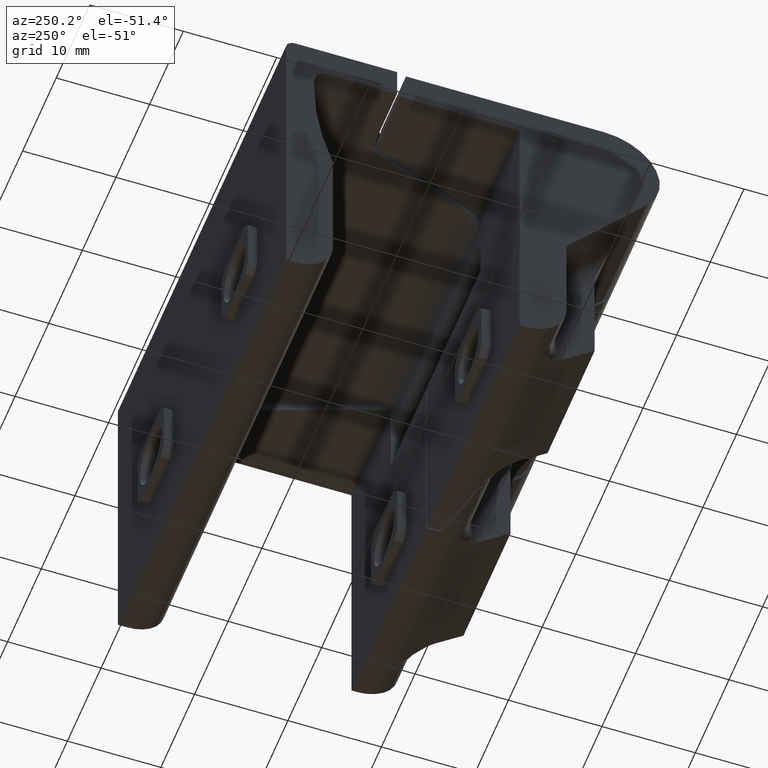
[diagram: clean part render]
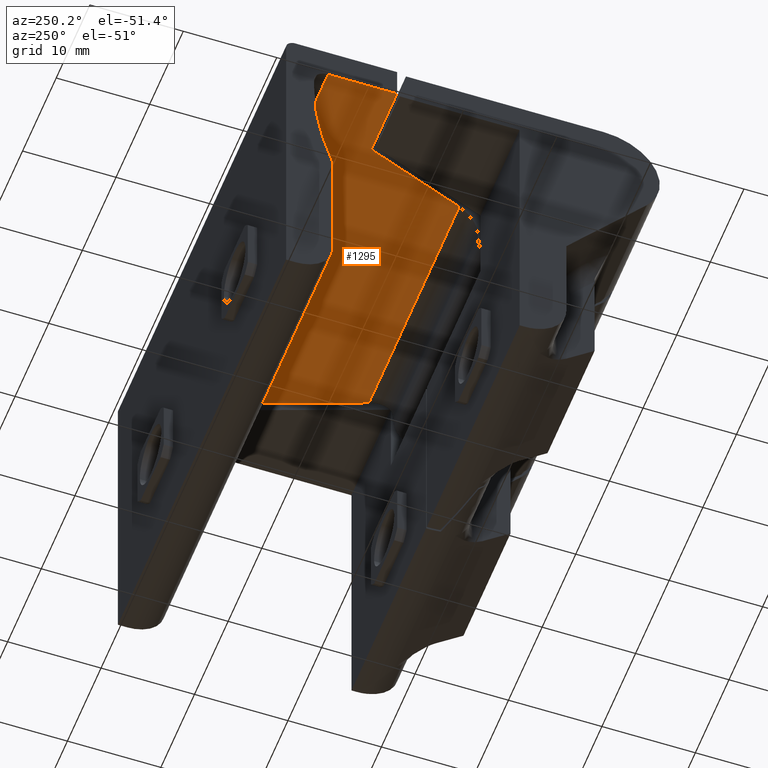
[diagram: same view with one face highlighted and labeled with its STEP entity id]
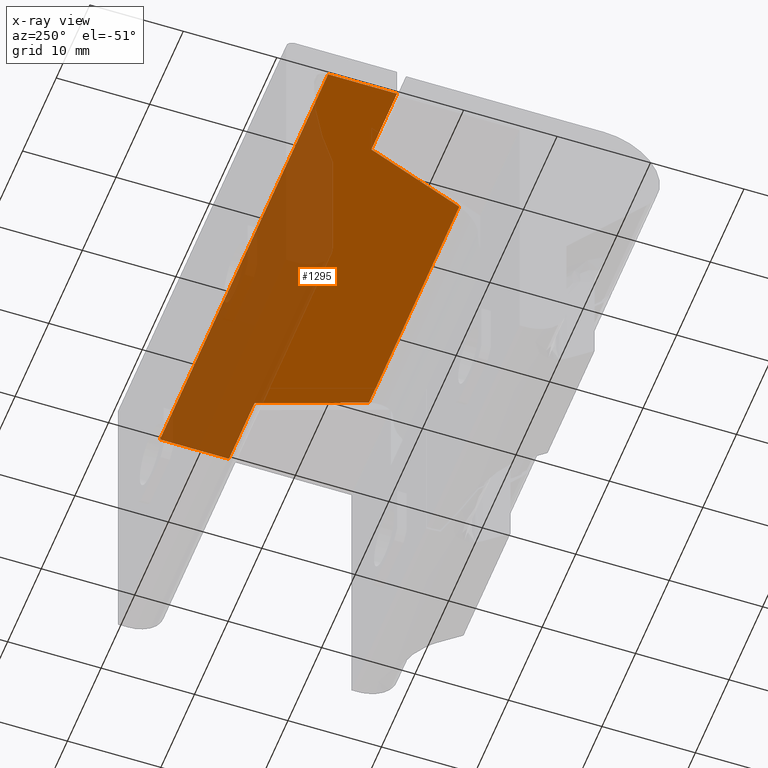
[diagram: x-ray of the same camera — body ghosted, the highlighted face saturated]
A machine part, auxiliary view. The second image highlights one B-rep face of the part: STEP entity #1295.
The next image is the same camera in x-ray: the body ghosted, the highlighted face saturated — about 44% of this face is hidden behind the body in this view.
In plain terms, the highlighted face is a freeform B-spline surface patch.
Its self-contained STEP definition (entity closure, byte-faithful):
#998=CARTESIAN_POINT('',(-17.367328519246200,-11.879647380749001,31.800000000037350));
#999=VERTEX_POINT('',#998);
#1005=CARTESIAN_POINT('',(-13.429042241574420,-22.699999999999999,31.800000000037350));
#1006=VERTEX_POINT('',#1005);
#1007=CARTESIAN_POINT('',(-13.429042241574420,-22.699999999999999,31.800000000037350));
#1008=CARTESIAN_POINT('',(-17.367328519246200,-11.879647380749001,31.800000000037350));
#1009=QUASI_UNIFORM_CURVE('',1,(#1007,#1008),.UNSPECIFIED.,.F.,.U.);
#1010=EDGE_CURVE('',#1006,#999,#1009,.T.);
#1210=CARTESIAN_POINT('',(13.429042241574660,-22.699999999999999,31.800000000037350));
#1211=VERTEX_POINT('',#1210);
#1226=CARTESIAN_POINT('',(17.367328519246200,-11.879647380749301,31.800000000037350));
#1227=VERTEX_POINT('',#1226);
#1228=CARTESIAN_POINT('',(13.429042241574660,-22.699999999999999,31.800000000037350));
#1229=CARTESIAN_POINT('',(17.367328519246200,-11.879647380749301,31.800000000037350));
#1230=QUASI_UNIFORM_CURVE('',1,(#1228,#1229),.UNSPECIFIED.,.F.,.U.);
#1231=EDGE_CURVE('',#1211,#1227,#1230,.T.);
#1248=CARTESIAN_POINT('',(-27.497499903090301,-23.609089964724870,31.800000000037350));
#1249=CARTESIAN_POINT('',(27.497501244194812,-23.609089964724870,31.800000000037350));
#1250=CARTESIAN_POINT('',(-27.497499903090301,-3.590909547113091,31.800000000037350));
#1251=CARTESIAN_POINT('',(27.497501244194812,-3.590909547113091,31.800000000037350));
#1252=B_SPLINE_SURFACE_WITH_KNOTS('',1,1,((#1248,#1250),(#1249,#1251)),.UNSPECIFIED.,.F.,.F.,.U.,(2,2),(2,2),(0.0,54.995001147285109),(0.0,20.018180417611781),.UNSPECIFIED.);
#1253=ORIENTED_EDGE('',*,*,#1010,.T.);
#1254=CARTESIAN_POINT('',(-25.0,-11.879647380749001,31.800000000037350));
#1255=VERTEX_POINT('',#1254);
#1256=CARTESIAN_POINT('',(-17.367328519246200,-11.879647380749001,31.800000000037350));
#1257=CARTESIAN_POINT('',(-25.0,-11.879647380749001,31.800000000037350));
#1258=QUASI_UNIFORM_CURVE('',1,(#1256,#1257),.UNSPECIFIED.,.F.,.U.);
#1259=EDGE_CURVE('',#999,#1255,#1258,.T.);
#1260=ORIENTED_EDGE('',*,*,#1259,.T.);
#1261=CARTESIAN_POINT('',(-25.0,-4.500000000000000,31.800000000037350));
#1262=VERTEX_POINT('',#1261);
#1263=CARTESIAN_POINT('',(-25.0,-11.879647380749001,31.800000000037350));
#1264=CARTESIAN_POINT('',(-25.0,-4.500000000000000,31.800000000037350));
#1265=QUASI_UNIFORM_CURVE('',1,(#1263,#1264),.UNSPECIFIED.,.F.,.U.);
#1266=EDGE_CURVE('',#1255,#1262,#1265,.T.);
#1267=ORIENTED_EDGE('',*,*,#1266,.T.);
#1268=CARTESIAN_POINT('',(25.0,-4.500000000000000,31.800000000037350));
#1269=VERTEX_POINT('',#1268);
#1270=CARTESIAN_POINT('',(25.0,-4.500000000000000,31.800000000037350));
#1271=CARTESIAN_POINT('',(-25.0,-4.500000000000000,31.800000000037350));
#1272=QUASI_UNIFORM_CURVE('',1,(#1270,#1271),.UNSPECIFIED.,.F.,.U.);
#1273=EDGE_CURVE('',#1269,#1262,#1272,.T.);
#1274=ORIENTED_EDGE('',*,*,#1273,.F.);
#1275=CARTESIAN_POINT('',(25.0,-11.879647380749001,31.800000000037350));
#1276=VERTEX_POINT('',#1275);
#1277=CARTESIAN_POINT('',(25.0,-11.879647380749001,31.800000000037350));
#1278=CARTESIAN_POINT('',(25.0,-4.500000000000000,31.800000000037350));
#1279=QUASI_UNIFORM_CURVE('',1,(#1277,#1278),.UNSPECIFIED.,.F.,.U.);
#1280=EDGE_CURVE('',#1276,#1269,#1279,.T.);
#1281=ORIENTED_EDGE('',*,*,#1280,.F.);
#1282=CARTESIAN_POINT('',(17.367328519246200,-11.879647380749301,31.800000000037350));
#1283=CARTESIAN_POINT('',(25.0,-11.879647380749001,31.800000000037350));
#1284=QUASI_UNIFORM_CURVE('',1,(#1282,#1283),.UNSPECIFIED.,.F.,.U.);
#1285=EDGE_CURVE('',#1227,#1276,#1284,.T.);
#1286=ORIENTED_EDGE('',*,*,#1285,.F.);
#1287=ORIENTED_EDGE('',*,*,#1231,.F.);
#1288=CARTESIAN_POINT('',(13.429042241574660,-22.699999999999999,31.800000000037350));
#1289=CARTESIAN_POINT('',(-13.429042241574420,-22.699999999999999,31.800000000037350));
#1290=QUASI_UNIFORM_CURVE('',1,(#1288,#1289),.UNSPECIFIED.,.F.,.U.);
#1291=EDGE_CURVE('',#1211,#1006,#1290,.T.);
#1292=ORIENTED_EDGE('',*,*,#1291,.T.);
#1293=EDGE_LOOP('',(#1253,#1260,#1267,#1274,#1281,#1286,#1287,#1292));
#1294=FACE_OUTER_BOUND('',#1293,.T.);
#1295=ADVANCED_FACE('',(#1294),#1252,.F.);